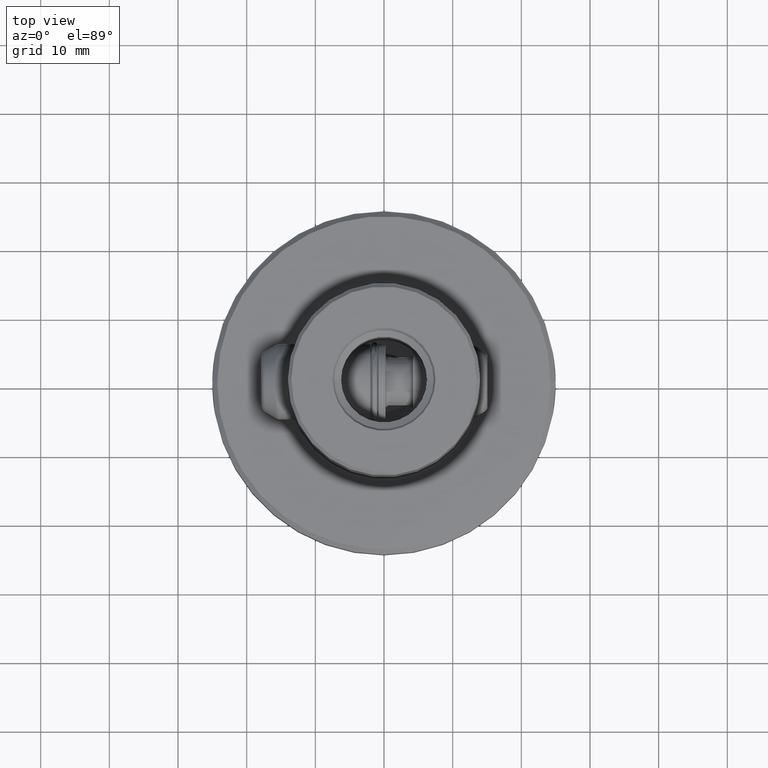
[diagram: clean part render]
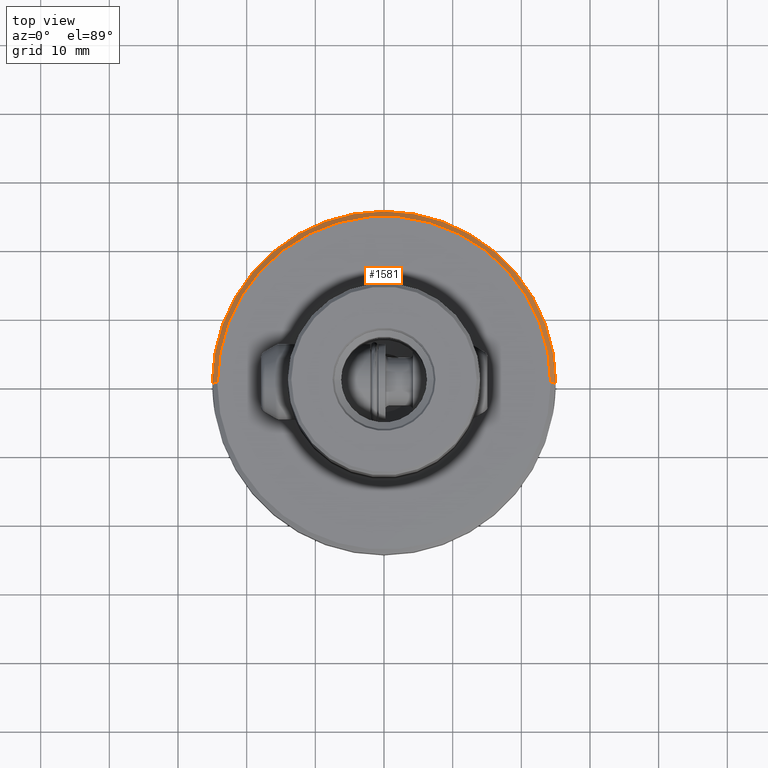
[diagram: same view with one face highlighted and labeled with its STEP entity id]
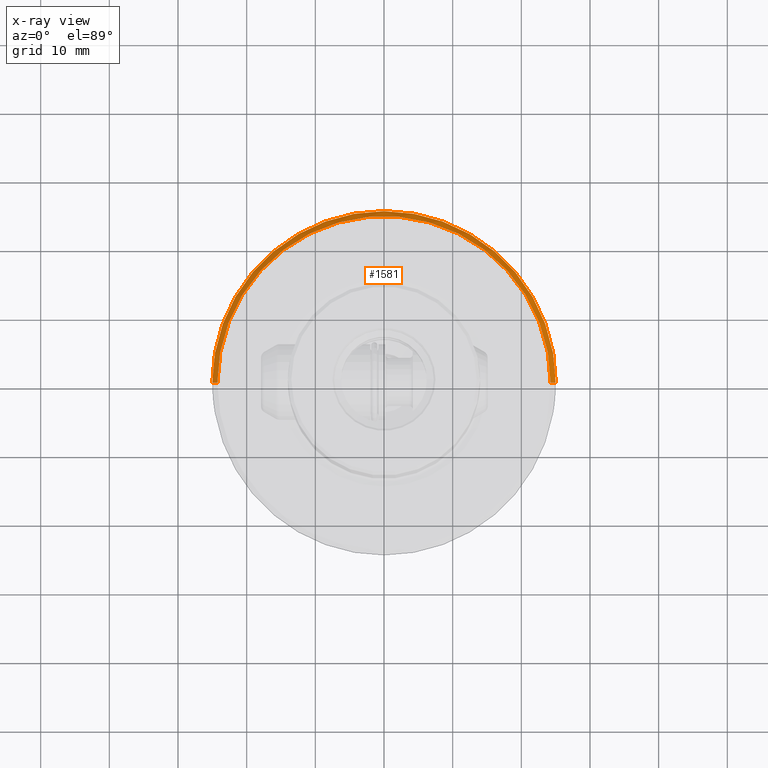
[diagram: x-ray of the same camera — body ghosted, the highlighted face saturated]
A machine part, top view. The second image highlights one B-rep face of the part: STEP entity #1581.
The next image is the same camera in x-ray: the body ghosted, the highlighted face saturated — about 0% of this face is hidden behind the body in this view.
In plain terms, the highlighted conical surface has half-angle 45 deg.
Its self-contained STEP definition (entity closure, byte-faithful):
#1227=EDGE_CURVE('NONE',#1319,#2571,#3376,.T.);
#1319=VERTEX_POINT('NONE',#3482);
#1425=VERTEX_POINT('NONE',#3603);
#1539=EDGE_CURVE('NONE',#2843,#1319,#3733,.T.);
#1581=ADVANCED_FACE('NONE',(#3781),#3782,.T.);
#2571=VERTEX_POINT('NONE',#4883);
#2637=EDGE_CURVE('NONE',#2843,#1425,#4958,.T.);
#2843=VERTEX_POINT('NONE',#5188);
#2989=EDGE_CURVE('NONE',#2571,#1425,#5350,.T.);
#3376=LINE('',#5839,#5840);
#3482=CARTESIAN_POINT('',(24.275,3.01712390422988E-015,0.0));
#3603=CARTESIAN_POINT('',(-25.0,3.06151588455594E-015,-0.724999999999987));
#3733=CIRCLE('',#6449,24.275);
#3781=FACE_OUTER_BOUND('',#6511,.T.);
#3782=CONICAL_SURFACE('',#6512,24.175,0.785398163397453);
#4883=CARTESIAN_POINT('',(25.0,0.0,-0.724999999999987));
#4958=LINE('',#8628,#8629);
#5188=CARTESIAN_POINT('',(-24.275,0.0,0.0));
#5350=CIRCLE('',#9259,25.0);
#5839=CARTESIAN_POINT('',(24.175,2.9604858603656E-015,0.100000000000005));
#5840=VECTOR('',#9907,1000.0);
#6449=AXIS2_PLACEMENT_3D('',#10371,#10372,#10373);
#6511=EDGE_LOOP('',(#10433,#10434,#10435,#10436));
#6512=AXIS2_PLACEMENT_3D('',#10437,#10438,#10439);
#8628=CARTESIAN_POINT('',(-24.175,0.0,0.100000000000005));
#8629=VECTOR('',#11816,1000.0);
#9259=AXIS2_PLACEMENT_3D('',#12288,#12289,#12290);
#9907=DIRECTION('',(0.707106781186551,8.6592745707194E-017,-0.707106781186544));
#10371=CARTESIAN_POINT('',(0.0,0.0,0.0));
#10372=DIRECTION('',(0.0,0.0,-1.0));
#10373=DIRECTION('',(-1.0,0.0,0.0));
#10433=ORIENTED_EDGE('',*,*,#1539,.T.);
#10434=ORIENTED_EDGE('',*,*,#1227,.T.);
#10435=ORIENTED_EDGE('',*,*,#2989,.T.);
#10436=ORIENTED_EDGE('',*,*,#2637,.F.);
#10437=CARTESIAN_POINT('',(0.0,0.0,0.100000000000005));
#10438=DIRECTION('',(-0.0,-0.0,-1.0));
#10439=DIRECTION('',(-1.0,0.0,0.0));
#11816=DIRECTION('',(-0.707106781186551,0.0,-0.707106781186544));
#12288=CARTESIAN_POINT('',(0.0,0.0,-0.724999999999987));
#12289=DIRECTION('',(0.0,0.0,1.0));
#12290=DIRECTION('',(-1.0,0.0,0.0));